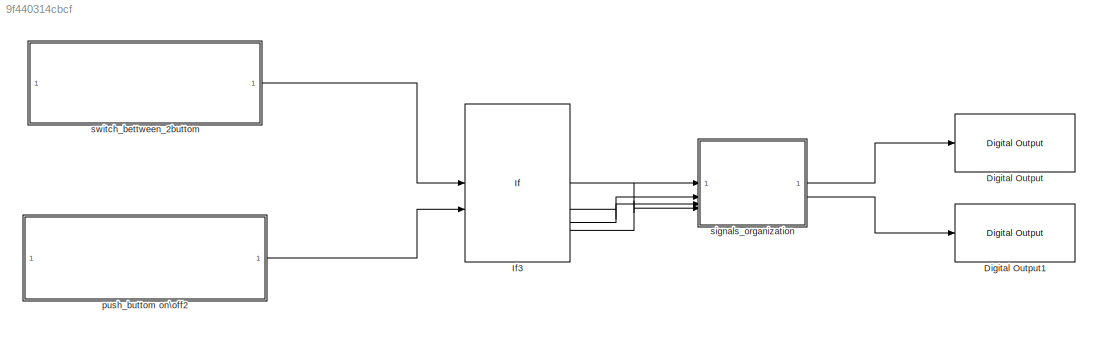
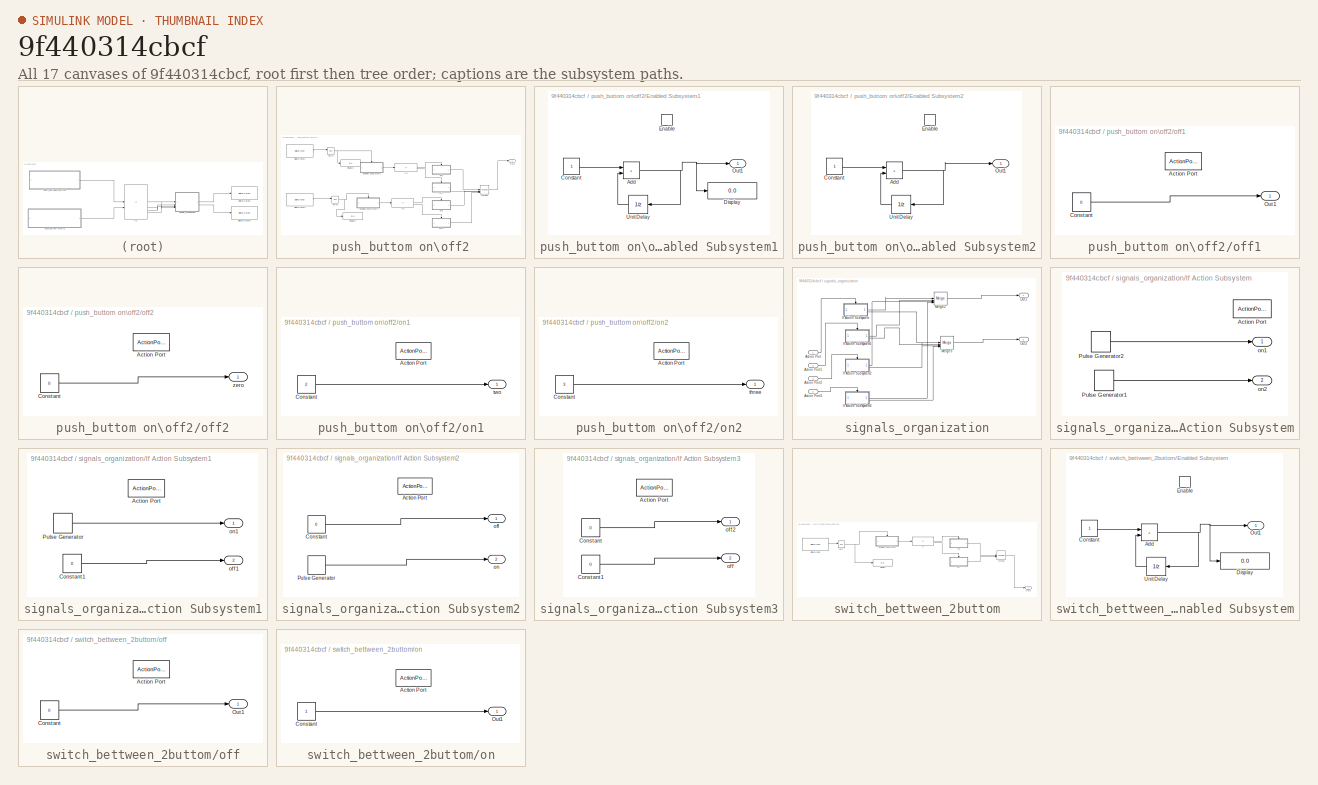
[diagram: thumbnail index - all 17 canvases of the model, root first then tree order]
MODEL slx_9f440314cbcf
KIND model
CONFIG AbsTol = auto
CONFIG EnableMultiTasking = on
CONFIG FixedStep = 1e-3
CONFIG MaxStep = auto
CONFIG MinStep = auto
CONFIG RelTol = 1e-3
CONFIG SampleTimeConstraint = Unconstrained
CONFIG SolverName = FixedStepDiscrete
CONFIG StartTime = 0.0
CONFIG StopTime = inf
BLOCK [Reference] Digital Output  REF=arduinolib/Digital Output
  SourceBlock = arduinolib/Digital Output
  SourceType = Arduino Digital Output
BLOCK [Reference] Digital Output1  REF=arduinolib/Digital Output
  SourceBlock = arduinolib/Digital Output
  SourceType = Arduino Digital Output
BLOCK [If] If3
  ElseIfExpressions = u2==2,u2==3,u2|u1==0
  IfExpression = u1 ==1
  NumInputs = 2
  ShowElse = off
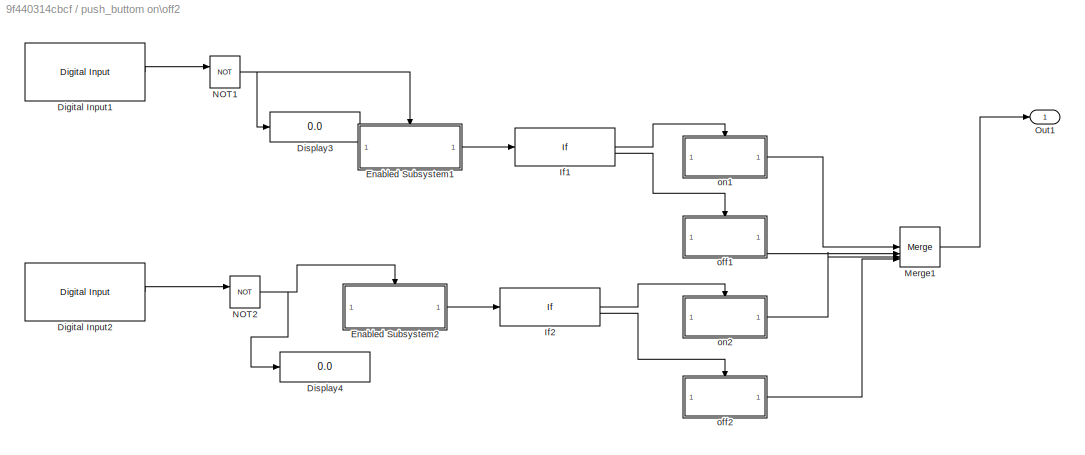
BLOCK [SubSystem] push_buttom on\off2
BLOCK [Reference] push_buttom on\off2/Digital Input1  REF=arduinolib/Digital Input
  SourceBlock = arduinolib/Digital Input
  SourceType = Arduino Digital Input
BLOCK [Reference] push_buttom on\off2/Digital Input2  REF=arduinolib/Digital Input
  SourceBlock = arduinolib/Digital Input
  SourceType = Arduino Digital Input
BLOCK [Display] push_buttom on\off2/Display3
  Decimation = 1
BLOCK [Display] push_buttom on\off2/Display4
  Decimation = 1
BLOCK [SubSystem] push_buttom on\off2/Enabled Subsystem1
  TreatAsAtomicUnit = on
BLOCK [Sum] push_buttom on\off2/Enabled Subsystem1/Add
  IconShape = rectangular
BLOCK [Constant] push_buttom on\off2/Enabled Subsystem1/Constant
BLOCK [Display] push_buttom on\off2/Enabled Subsystem1/Display
  Decimation = 1
BLOCK [EnablePort] push_buttom on\off2/Enabled Subsystem1/Enable
  StatesWhenEnabling = reset
BLOCK [Outport] push_buttom on\off2/Enabled Subsystem1/Out1
BLOCK [UnitDelay] push_buttom on\off2/Enabled Subsystem1/Unit Delay
  HasFrameUpgradeWarning = on
  SampleTime = -1
BLOCK [SubSystem] push_buttom on\off2/Enabled Subsystem2
  TreatAsAtomicUnit = on
BLOCK [Sum] push_buttom on\off2/Enabled Subsystem2/Add
  IconShape = rectangular
BLOCK [Constant] push_buttom on\off2/Enabled Subsystem2/Constant
BLOCK [EnablePort] push_buttom on\off2/Enabled Subsystem2/Enable
  StatesWhenEnabling = reset
BLOCK [Outport] push_buttom on\off2/Enabled Subsystem2/Out1
BLOCK [UnitDelay] push_buttom on\off2/Enabled Subsystem2/Unit Delay
  HasFrameUpgradeWarning = on
  SampleTime = -1
BLOCK [If] push_buttom on\off2/If1
  ElseIfExpressions = u1 ==3000
  IfExpression = u1 ==500
  ShowElse = off
BLOCK [If] push_buttom on\off2/If2
  ElseIfExpressions = u1 ==3000
  IfExpression = u1 ==500
  ShowElse = off
BLOCK [Merge] push_buttom on\off2/Merge1
  Inputs = 4
BLOCK [Logic] push_buttom on\off2/NOT1
  AllPortsSameDT = off
  IconShape = distinctive
  Operator = NOT
  OutDataTypeStr = boolean
BLOCK [Logic] push_buttom on\off2/NOT2
  AllPortsSameDT = off
  IconShape = distinctive
  Operator = NOT
  OutDataTypeStr = boolean
BLOCK [Outport] push_buttom on\off2/Out1
BLOCK [SubSystem] push_buttom on\off2/off1
  TreatAsAtomicUnit = on
BLOCK [ActionPort] push_buttom on\off2/off1/Action Port
  ActionPortLabel = elseif(u1 ==3000)
BLOCK [Constant] push_buttom on\off2/off1/Constant
  Value = 0
BLOCK [Outport] push_buttom on\off2/off1/Out1
BLOCK [SubSystem] push_buttom on\off2/off2
  TreatAsAtomicUnit = on
BLOCK [ActionPort] push_buttom on\off2/off2/Action Port
  ActionPortLabel = elseif(u1 ==3000)
BLOCK [Constant] push_buttom on\off2/off2/Constant
  Value = 0
BLOCK [Outport] push_buttom on\off2/off2/zero
BLOCK [SubSystem] push_buttom on\off2/on1
  TreatAsAtomicUnit = on
BLOCK [ActionPort] push_buttom on\off2/on1/Action Port
  ActionPortLabel = if(u1 ==500)
BLOCK [Constant] push_buttom on\off2/on1/Constant
  Value = 2
BLOCK [Outport] push_buttom on\off2/on1/two
BLOCK [SubSystem] push_buttom on\off2/on2
  TreatAsAtomicUnit = on
BLOCK [ActionPort] push_buttom on\off2/on2/Action Port
  ActionPortLabel = if(u1 ==500)
BLOCK [Constant] push_buttom on\off2/on2/Constant
  Value = 3
BLOCK [Outport] push_buttom on\off2/on2/three
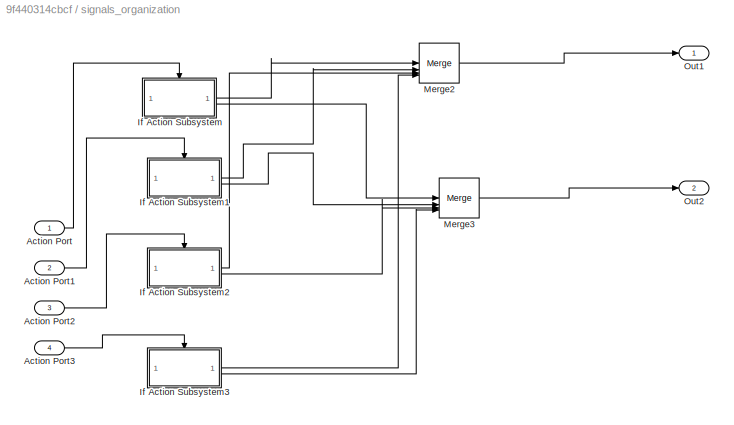
BLOCK [SubSystem] signals_organization
BLOCK [Inport] signals_organization/Action Port
BLOCK [Inport] signals_organization/Action Port1
  Port = 2
BLOCK [Inport] signals_organization/Action Port2
  Port = 3
BLOCK [Inport] signals_organization/Action Port3
  Port = 4
BLOCK [SubSystem] signals_organization/If Action Subsystem
  TreatAsAtomicUnit = on
BLOCK [ActionPort] signals_organization/If Action Subsystem/Action Port
  ActionPortLabel = if(u1 ==1)
BLOCK [DiscretePulseGenerator] signals_organization/If Action Subsystem/Pulse Generator1
  Period = 1
  PulseType = Time based
  PulseWidth = 50
BLOCK [DiscretePulseGenerator] signals_organization/If Action Subsystem/Pulse Generator2
  Period = 1
  PulseType = Time based
  PulseWidth = 50
BLOCK [Outport] signals_organization/If Action Subsystem/on1
BLOCK [Outport] signals_organization/If Action Subsystem/on2
  Port = 2
BLOCK [SubSystem] signals_organization/If Action Subsystem1
  TreatAsAtomicUnit = on
BLOCK [ActionPort] signals_organization/If Action Subsystem1/Action Port
  ActionPortLabel = elseif(u2==2)
BLOCK [Constant] signals_organization/If Action Subsystem1/Constant1
  Value = 0
BLOCK [DiscretePulseGenerator] signals_organization/If Action Subsystem1/Pulse Generator
  PulseType = Time based
  PulseWidth = 50
BLOCK [Outport] signals_organization/If Action Subsystem1/off1
  Port = 2
BLOCK [Outport] signals_organization/If Action Subsystem1/on1
BLOCK [SubSystem] signals_organization/If Action Subsystem2
  TreatAsAtomicUnit = on
BLOCK [ActionPort] signals_organization/If Action Subsystem2/Action Port
  ActionPortLabel = elseif(u2==3)
BLOCK [Constant] signals_organization/If Action Subsystem2/Constant
  Value = 0
BLOCK [DiscretePulseGenerator] signals_organization/If Action Subsystem2/Pulse Generator
  PulseType = Time based
  PulseWidth = 50
BLOCK [Outport] signals_organization/If Action Subsystem2/off
BLOCK [Outport] signals_organization/If Action Subsystem2/on
  Port = 2
BLOCK [SubSystem] signals_organization/If Action Subsystem3
  TreatAsAtomicUnit = on
BLOCK [ActionPort] signals_organization/If Action Subsystem3/Action Port
  ActionPortLabel = elseif(u2|u1==0)
BLOCK [Constant] signals_organization/If Action Subsystem3/Constant
  Value = 0
BLOCK [Constant] signals_organization/If Action Subsystem3/Constant1
  Value = 0
BLOCK [Outport] signals_organization/If Action Subsystem3/off
  Port = 2
BLOCK [Outport] signals_organization/If Action Subsystem3/off2
BLOCK [Merge] signals_organization/Merge2
  Inputs = 4
BLOCK [Merge] signals_organization/Merge3
  Inputs = 4
BLOCK [Outport] signals_organization/Out1
BLOCK [Outport] signals_organization/Out2
  Port = 2
BLOCK [SubSystem] switch_bettween_2buttom
BLOCK [Reference] switch_bettween_2buttom/Digital Input  REF=arduinolib/Digital Input
  SourceBlock = arduinolib/Digital Input
  SourceType = Arduino Digital Input
BLOCK [Display] switch_bettween_2buttom/Display
  Decimation = 1
BLOCK [SubSystem] switch_bettween_2buttom/Enabled Subsystem
  TreatAsAtomicUnit = on
BLOCK [Sum] switch_bettween_2buttom/Enabled Subsystem/Add
  IconShape = rectangular
BLOCK [Constant] switch_bettween_2buttom/Enabled Subsystem/Constant
BLOCK [Display] switch_bettween_2buttom/Enabled Subsystem/Display
  Decimation = 1
BLOCK [EnablePort] switch_bettween_2buttom/Enabled Subsystem/Enable
  StatesWhenEnabling = reset
BLOCK [Outport] switch_bettween_2buttom/Enabled Subsystem/Out1
BLOCK [UnitDelay] switch_bettween_2buttom/Enabled Subsystem/Unit Delay
  HasFrameUpgradeWarning = on
  SampleTime = -1
BLOCK [If] switch_bettween_2buttom/If
  ElseIfExpressions = u1 ==3000
  IfExpression = u1 ==500
  ShowElse = off
BLOCK [Merge] switch_bettween_2buttom/Merge
BLOCK [Logic] switch_bettween_2buttom/NOT
  AllPortsSameDT = off
  IconShape = distinctive
  Operator = NOT
  OutDataTypeStr = boolean
BLOCK [Outport] switch_bettween_2buttom/Out1
BLOCK [SubSystem] switch_bettween_2buttom/off
  TreatAsAtomicUnit = on
BLOCK [ActionPort] switch_bettween_2buttom/off/Action Port
  ActionPortLabel = elseif(u1 ==3000)
BLOCK [Constant] switch_bettween_2buttom/off/Constant
  Value = 0
BLOCK [Outport] switch_bettween_2buttom/off/Out1
BLOCK [SubSystem] switch_bettween_2buttom/on
  TreatAsAtomicUnit = on
BLOCK [ActionPort] switch_bettween_2buttom/on/Action Port
  ActionPortLabel = if(u1 ==500)
BLOCK [Constant] switch_bettween_2buttom/on/Constant
BLOCK [Outport] switch_bettween_2buttom/on/Out1
LINE If3:1 -> signals_organization:1
LINE If3:2 -> signals_organization:2
LINE If3:3 -> signals_organization:3
LINE If3:4 -> signals_organization:4
LINE push_buttom on\off2/Digital Input1:1 -> push_buttom on\off2/NOT1:1
LINE push_buttom on\off2/Digital Input2:1 -> push_buttom on\off2/NOT2:1
NET push_buttom on\off2/Enabled Subsystem1/Add:1 -> push_buttom on\off2/Enabled Subsystem1/Display:1, push_buttom on\off2/Enabled Subsystem1/Out1:1, push_buttom on\off2/Enabled Subsystem1/Unit Delay:1
LINE push_buttom on\off2/Enabled Subsystem1/Constant:1 -> push_buttom on\off2/Enabled Subsystem1/Add:1
LINE push_buttom on\off2/Enabled Subsystem1/Unit Delay:1 -> push_buttom on\off2/Enabled Subsystem1/Add:2
LINE push_buttom on\off2/Enabled Subsystem1:1 -> push_buttom on\off2/If1:1
NET push_buttom on\off2/Enabled Subsystem2/Add:1 -> push_buttom on\off2/Enabled Subsystem2/Out1:1, push_buttom on\off2/Enabled Subsystem2/Unit Delay:1
LINE push_buttom on\off2/Enabled Subsystem2/Constant:1 -> push_buttom on\off2/Enabled Subsystem2/Add:1
LINE push_buttom on\off2/Enabled Subsystem2/Unit Delay:1 -> push_buttom on\off2/Enabled Subsystem2/Add:2
LINE push_buttom on\off2/Enabled Subsystem2:1 -> push_buttom on\off2/If2:1
LINE push_buttom on\off2/If1:1 -> push_buttom on\off2/on1:ifaction
LINE push_buttom on\off2/If1:2 -> push_buttom on\off2/off1:ifaction
LINE push_buttom on\off2/If2:1 -> push_buttom on\off2/on2:ifaction
LINE push_buttom on\off2/If2:2 -> push_buttom on\off2/off2:ifaction
LINE push_buttom on\off2/Merge1:1 -> push_buttom on\off2/Out1:1
NET push_buttom on\off2/NOT1:1 -> push_buttom on\off2/Display3:1, push_buttom on\off2/Enabled Subsystem1:enable
NET push_buttom on\off2/NOT2:1 -> push_buttom on\off2/Display4:1, push_buttom on\off2/Enabled Subsystem2:enable
LINE push_buttom on\off2/off1/Constant:1 -> push_buttom on\off2/off1/Out1:1
LINE push_buttom on\off2/off1:1 -> push_buttom on\off2/Merge1:2
LINE push_buttom on\off2/off2/Constant:1 -> push_buttom on\off2/off2/zero:1
LINE push_buttom on\off2/off2:1 -> push_buttom on\off2/Merge1:4
LINE push_buttom on\off2/on1/Constant:1 -> push_buttom on\off2/on1/two:1
LINE push_buttom on\off2/on1:1 -> push_buttom on\off2/Merge1:1
LINE push_buttom on\off2/on2/Constant:1 -> push_buttom on\off2/on2/three:1
LINE push_buttom on\off2/on2:1 -> push_buttom on\off2/Merge1:3
LINE push_buttom on\off2:1 -> If3:2
LINE signals_organization/Action Port1:1 -> signals_organization/If Action Subsystem1:ifaction
LINE signals_organization/Action Port2:1 -> signals_organization/If Action Subsystem2:ifaction
LINE signals_organization/Action Port3:1 -> signals_organization/If Action Subsystem3:ifaction
LINE signals_organization/Action Port:1 -> signals_organization/If Action Subsystem:ifaction
LINE signals_organization/If Action Subsystem/Pulse Generator1:1 -> signals_organization/If Action Subsystem/on2:1
LINE signals_organization/If Action Subsystem/Pulse Generator2:1 -> signals_organization/If Action Subsystem/on1:1
LINE signals_organization/If Action Subsystem1/Constant1:1 -> signals_organization/If Action Subsystem1/off1:1
LINE signals_organization/If Action Subsystem1/Pulse Generator:1 -> signals_organization/If Action Subsystem1/on1:1
LINE signals_organization/If Action Subsystem1:1 -> signals_organization/Merge2:2
LINE signals_organization/If Action Subsystem1:2 -> signals_organization/Merge3:2
LINE signals_organization/If Action Subsystem2/Constant:1 -> signals_organization/If Action Subsystem2/off:1
LINE signals_organization/If Action Subsystem2/Pulse Generator:1 -> signals_organization/If Action Subsystem2/on:1
LINE signals_organization/If Action Subsystem2:1 -> signals_organization/Merge2:3
LINE signals_organization/If Action Subsystem2:2 -> signals_organization/Merge3:3
LINE signals_organization/If Action Subsystem3/Constant1:1 -> signals_organization/If Action Subsystem3/off:1
LINE signals_organization/If Action Subsystem3/Constant:1 -> signals_organization/If Action Subsystem3/off2:1
LINE signals_organization/If Action Subsystem3:1 -> signals_organization/Merge2:4
LINE signals_organization/If Action Subsystem3:2 -> signals_organization/Merge3:4
LINE signals_organization/If Action Subsystem:1 -> signals_organization/Merge2:1
LINE signals_organization/If Action Subsystem:2 -> signals_organization/Merge3:1
LINE signals_organization/Merge2:1 -> signals_organization/Out1:1
LINE signals_organization/Merge3:1 -> signals_organization/Out2:1
LINE signals_organization:1 -> Digital Output:1
LINE signals_organization:2 -> Digital Output1:1
LINE switch_bettween_2buttom/Digital Input:1 -> switch_bettween_2buttom/NOT:1
NET switch_bettween_2buttom/Enabled Subsystem/Add:1 -> switch_bettween_2buttom/Enabled Subsystem/Display:1, switch_bettween_2buttom/Enabled Subsystem/Out1:1, switch_bettween_2buttom/Enabled Subsystem/Unit Delay:1
LINE switch_bettween_2buttom/Enabled Subsystem/Constant:1 -> switch_bettween_2buttom/Enabled Subsystem/Add:1
LINE switch_bettween_2buttom/Enabled Subsystem/Unit Delay:1 -> switch_bettween_2buttom/Enabled Subsystem/Add:2
LINE switch_bettween_2buttom/Enabled Subsystem:1 -> switch_bettween_2buttom/If:1
LINE switch_bettween_2buttom/If:1 -> switch_bettween_2buttom/on:ifaction
LINE switch_bettween_2buttom/If:2 -> switch_bettween_2buttom/off:ifaction
LINE switch_bettween_2buttom/Merge:1 -> switch_bettween_2buttom/Out1:1
NET switch_bettween_2buttom/NOT:1 -> switch_bettween_2buttom/Display:1, switch_bettween_2buttom/Enabled Subsystem:enable
LINE switch_bettween_2buttom/off/Constant:1 -> switch_bettween_2buttom/off/Out1:1
LINE switch_bettween_2buttom/off:1 -> switch_bettween_2buttom/Merge:2
LINE switch_bettween_2buttom/on/Constant:1 -> switch_bettween_2buttom/on/Out1:1
LINE switch_bettween_2buttom/on:1 -> switch_bettween_2buttom/Merge:1
LINE switch_bettween_2buttom:1 -> If3:1
note: NET lines group one-source signal fan-out (src -> all destinations, sorted); 1:1 wires keep LINE
